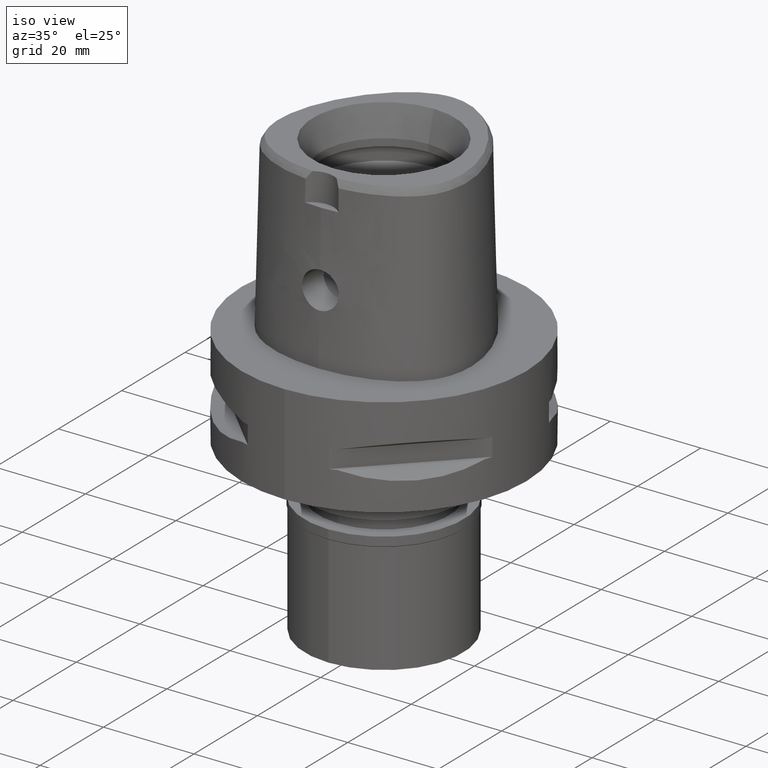
[diagram: clean part render]
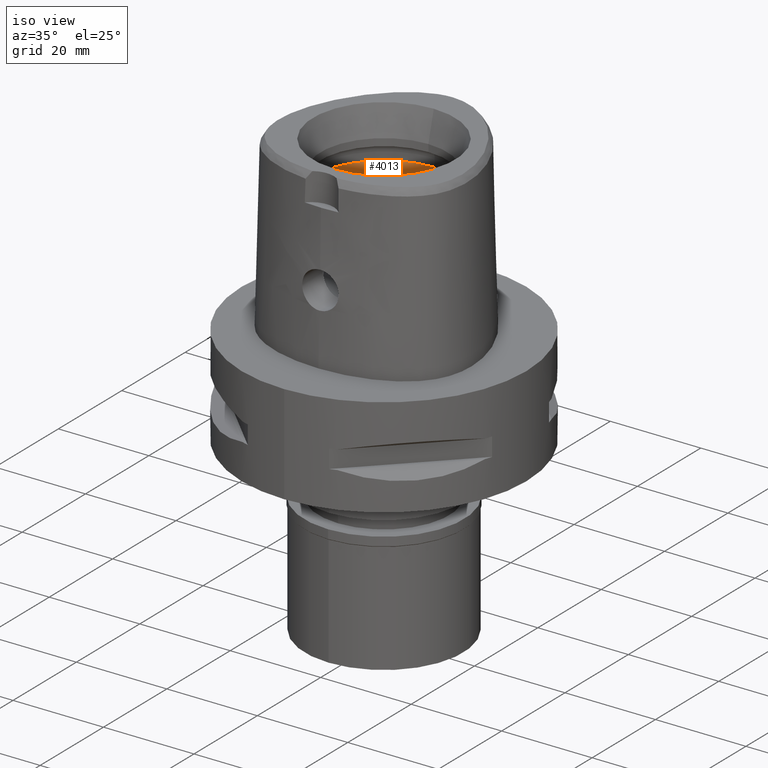
[diagram: same view with one face highlighted and labeled with its STEP entity id]
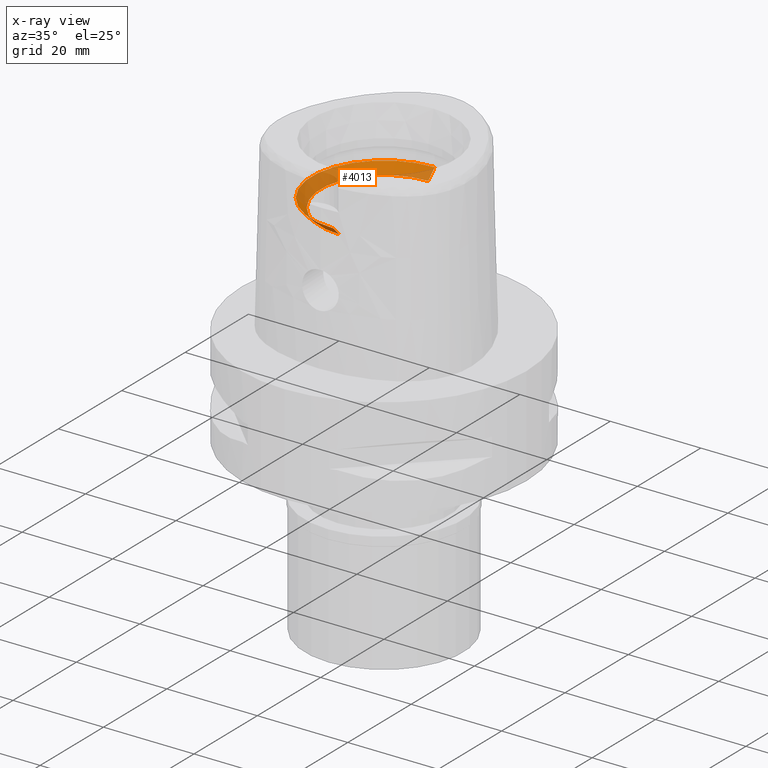
[diagram: x-ray of the same camera — body ghosted, the highlighted face saturated]
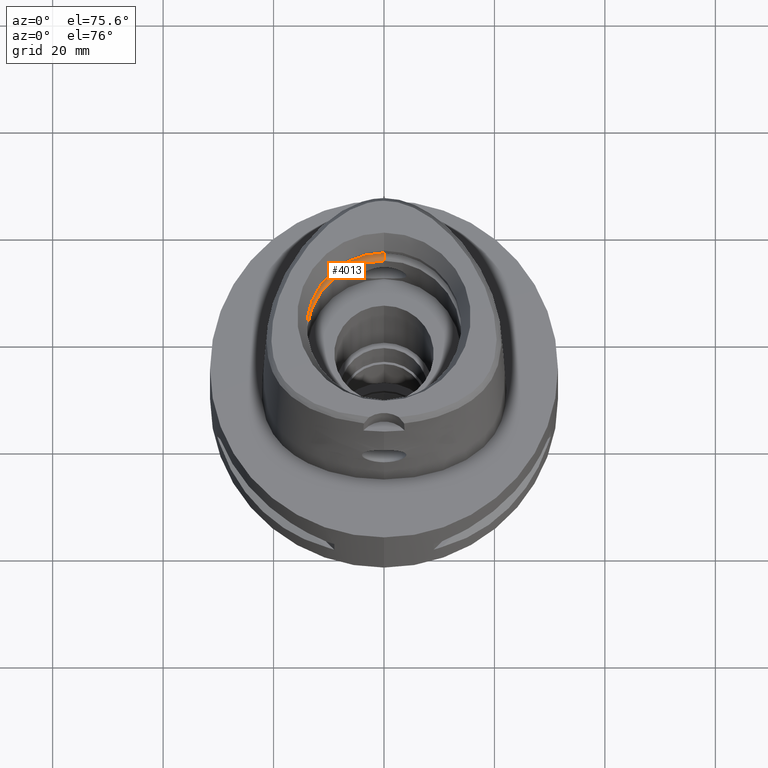
[diagram: same view with one face highlighted and labeled with its STEP entity id]
A machine part, iso view. The second image highlights one B-rep face of the part: STEP entity #4013.
The next image is the same camera in x-ray: the body ghosted, the highlighted face saturated — about 48% of this face is hidden behind the body in this view.
A second angle (auxiliary view) of the same face is appended — the face is thin or edge-on in the first view.
In plain terms, the highlighted conical surface has half-angle 45 deg.
Its self-contained STEP definition (entity closure, byte-faithful):
#318 = ORIENTED_EDGE ( 'NONE', *, *, #2209, .F. ) ;
#562 = VERTEX_POINT ( 'NONE', #3168 ) ;
#616 = DIRECTION ( 'NONE',  ( 0.0000000000000000000, 0.0000000000000000000, 1.000000000000000000 ) ) ;
#746 = FACE_OUTER_BOUND ( 'NONE', #3520, .T. ) ;
#809 = AXIS2_PLACEMENT_3D ( 'NONE', #2510, #616, #1359 ) ;
#1222 = EDGE_CURVE ( 'NONE', #3272, #1886, #1779, .T. ) ;
#1359 = DIRECTION ( 'NONE',  ( 0.0000000000000000000, 1.000000000000000000, 0.0000000000000000000 ) ) ;
#1468 = AXIS2_PLACEMENT_3D ( 'NONE', #2688, #4143, #3064 ) ;
#1511 = VERTEX_POINT ( 'NONE', #3607 ) ;
#1535 = ORIENTED_EDGE ( 'NONE', *, *, #2055, .T. ) ;
#1702 = CARTESIAN_POINT ( 'NONE',  ( 0.0000000000000000000, 14.00000000000000000, 24.19999999999999929 ) ) ;
#1779 = CIRCLE ( 'NONE', #1468, 16.00000000000000000 ) ;
#1796 = CONICAL_SURFACE ( 'NONE', #809, 15.00000000000000000, 0.7853981633972997312 ) ;
#1807 = EDGE_CURVE ( 'NONE', #562, #3272, #3357, .T. ) ;
#1886 = VERTEX_POINT ( 'NONE', #2700 ) ;
#1911 = DIRECTION ( 'NONE',  ( 0.0000000000000000000, -0.7071067811865474617, 0.7071067811865474617 ) ) ;
#2055 = EDGE_CURVE ( 'NONE', #1511, #1886, #4307, .T. ) ;
#2209 = EDGE_CURVE ( 'NONE', #1511, #562, #3099, .T. ) ;
#2510 = CARTESIAN_POINT ( 'NONE',  ( 0.0000000000000000000, 0.0000000000000000000, 25.19999999999999929 ) ) ;
#2557 = VECTOR ( 'NONE', #1911, 1000.000000000000114 ) ;
#2644 = AXIS2_PLACEMENT_3D ( 'NONE', #3092, #3427, #4229 ) ;
#2688 = CARTESIAN_POINT ( 'NONE',  ( 0.0000000000000000000, 0.0000000000000000000, 26.20000000000000284 ) ) ;
#2700 = CARTESIAN_POINT ( 'NONE',  ( 0.0000000000000000000, 16.00000000000000000, 26.20000000000000284 ) ) ;
#2825 = DIRECTION ( 'NONE',  ( 0.0000000000000000000, 0.7071067811865474617, 0.7071067811865474617 ) ) ;
#3064 = DIRECTION ( 'NONE',  ( 0.0000000000000000000, -1.000000000000000000, 0.0000000000000000000 ) ) ;
#3076 = CARTESIAN_POINT ( 'NONE',  ( 0.0000000000000000000, -14.00000000000000000, 24.19999999999999929 ) ) ;
#3092 = CARTESIAN_POINT ( 'NONE',  ( 0.0000000000000000000, 0.0000000000000000000, 24.19999999999999929 ) ) ;
#3099 = CIRCLE ( 'NONE', #2644, 14.00000000000000000 ) ;
#3168 = CARTESIAN_POINT ( 'NONE',  ( 0.0000000000000000000, -14.00000000000000000, 24.19999999999999929 ) ) ;
#3269 = ORIENTED_EDGE ( 'NONE', *, *, #1807, .F. ) ;
#3272 = VERTEX_POINT ( 'NONE', #4321 ) ;
#3357 = LINE ( 'NONE', #3076, #2557 ) ;
#3427 = DIRECTION ( 'NONE',  ( 0.0000000000000000000, 0.0000000000000000000, 1.000000000000000000 ) ) ;
#3520 = EDGE_LOOP ( 'NONE', ( #318, #1535, #4269, #3269 ) ) ;
#3607 = CARTESIAN_POINT ( 'NONE',  ( 0.0000000000000000000, 14.00000000000000000, 24.19999999999999929 ) ) ;
#4013 = ADVANCED_FACE ( 'NONE', ( #746 ), #1796, .F. ) ;
#4143 = DIRECTION ( 'NONE',  ( 0.0000000000000000000, 0.0000000000000000000, -1.000000000000000000 ) ) ;
#4229 = DIRECTION ( 'NONE',  ( 0.0000000000000000000, 1.000000000000000000, 0.0000000000000000000 ) ) ;
#4255 = VECTOR ( 'NONE', #2825, 1000.000000000000114 ) ;
#4269 = ORIENTED_EDGE ( 'NONE', *, *, #1222, .F. ) ;
#4307 = LINE ( 'NONE', #1702, #4255 ) ;
#4321 = CARTESIAN_POINT ( 'NONE',  ( 0.0000000000000000000, -16.00000000000000000, 26.20000000000000284 ) ) ;